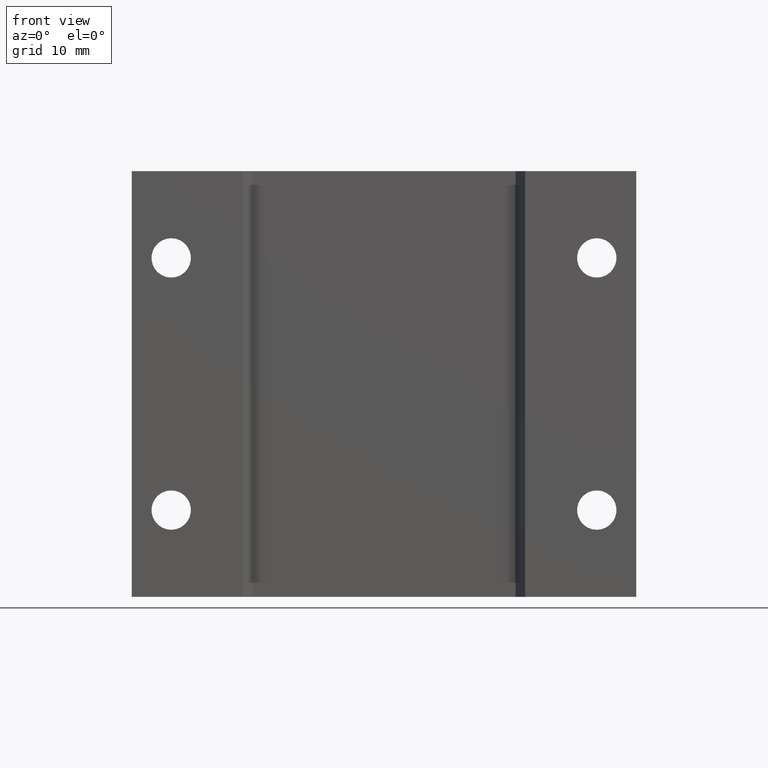
[diagram: clean part render]
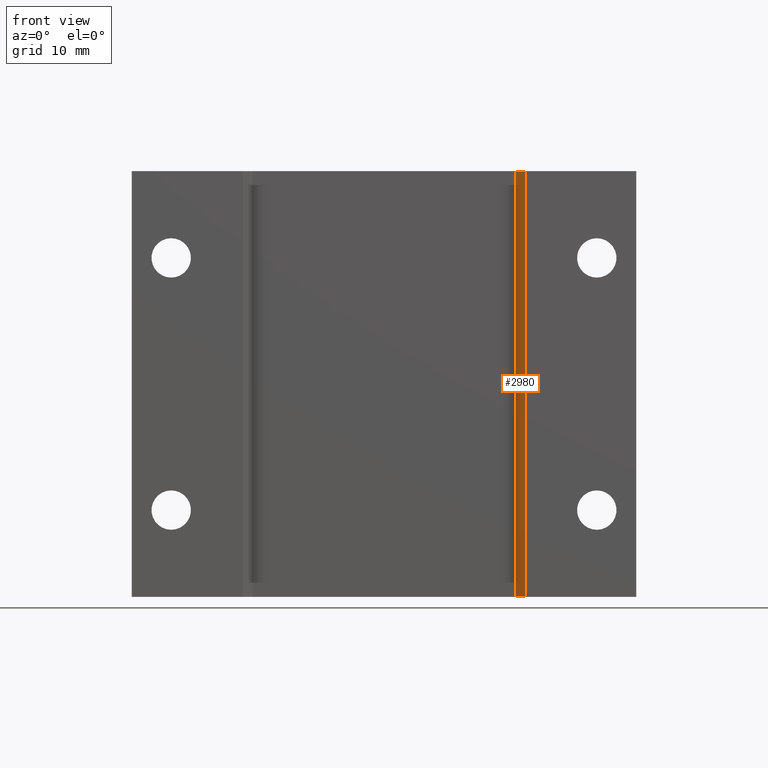
[diagram: same view with one face highlighted and labeled with its STEP entity id]
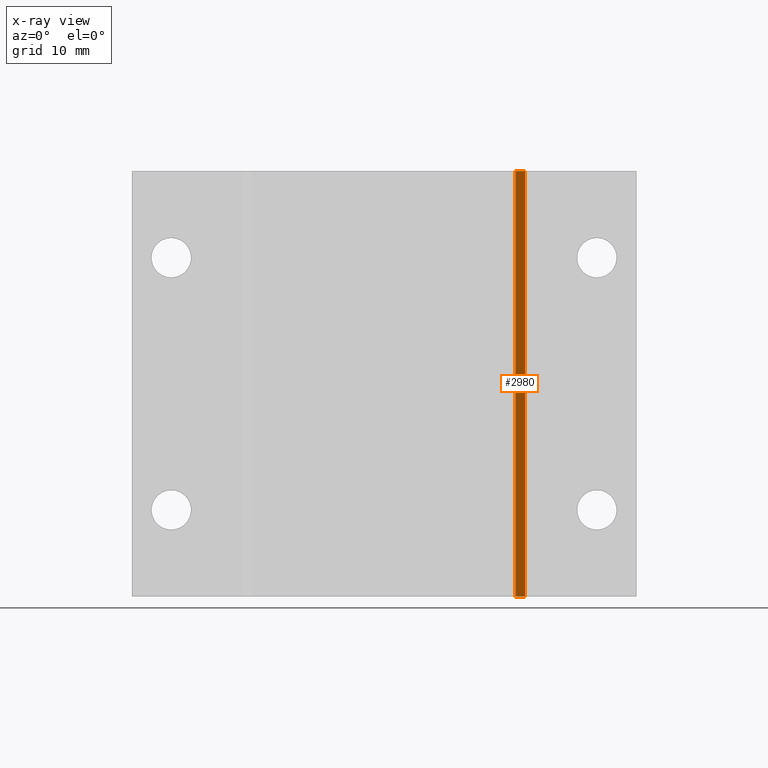
[diagram: x-ray of the same camera — body ghosted, the highlighted face saturated]
A machine part, front view. The second image highlights one B-rep face of the part: STEP entity #2980.
The next image is the same camera in x-ray: the body ghosted, the highlighted face saturated — about 0% of this face is hidden behind the body in this view.
In plain terms, the highlighted planar face has unit normal (0.866, 0.5, 0).
Its self-contained STEP definition (entity closure, byte-faithful):
#176 = DIRECTION ( 'NONE',  ( -0.5000000000000036637, 0.8660254037844364872, 0.0000000000000000000 ) ) ;
#272 = LINE ( 'NONE', #2430, #3260 ) ;
#298 = VERTEX_POINT ( 'NONE', #2112 ) ;
#352 = EDGE_LOOP ( 'NONE', ( #1609, #3660, #3133, #1239 ) ) ;
#365 = EDGE_CURVE ( 'NONE', #298, #3297, #1278, .T. ) ;
#928 = DIRECTION ( 'NONE',  ( -0.5000000000000036637, 0.8660254037844364872, -0.0000000000000000000 ) ) ;
#1032 = AXIS2_PLACEMENT_3D ( 'NONE', #1932, #3284, #176 ) ;
#1079 = EDGE_CURVE ( 'NONE', #1425, #1791, #2619, .T. ) ;
#1212 = PLANE ( 'NONE',  #1032 ) ;
#1239 = ORIENTED_EDGE ( 'NONE', *, *, #1079, .F. ) ;
#1278 = LINE ( 'NONE', #3329, #2720 ) ;
#1425 = VERTEX_POINT ( 'NONE', #2680 ) ;
#1609 = ORIENTED_EDGE ( 'NONE', *, *, #3923, .F. ) ;
#1759 = CARTESIAN_POINT ( 'NONE',  ( 0.5219252271188813408, -0.6219999999999999973, -0.8440019685039371611 ) ) ;
#1791 = VERTEX_POINT ( 'NONE', #2394 ) ;
#1932 = CARTESIAN_POINT ( 'NONE',  ( 0.5219252271188813408, -0.6219999999999999973, -0.8440019685039371611 ) ) ;
#2112 = CARTESIAN_POINT ( 'NONE',  ( 0.5594529946162074552, -0.6870000000000000551, -0.8440000000000000835 ) ) ;
#2389 = EDGE_CURVE ( 'NONE', #3297, #1791, #3486, .T. ) ;
#2394 = CARTESIAN_POINT ( 'NONE',  ( 0.5219252271188813408, -0.6219999999999999973, 0.8439999999999997504 ) ) ;
#2430 = CARTESIAN_POINT ( 'NONE',  ( 0.1221100197621973749, 0.07050025278045586596, -0.8440000000000000835 ) ) ;
#2619 = LINE ( 'NONE', #1759, #2817 ) ;
#2648 = VECTOR ( 'NONE', #3754, 39.37007874015748854 ) ;
#2680 = CARTESIAN_POINT ( 'NONE',  ( 0.5219252271188813408, -0.6219999999999999973, -0.8440000000000000835 ) ) ;
#2720 = VECTOR ( 'NONE', #3669, 39.37007874015748143 ) ;
#2817 = VECTOR ( 'NONE', #3941, 39.37007874015748143 ) ;
#2980 = ADVANCED_FACE ( 'NONE', ( #3113 ), #1212, .F. ) ;
#3113 = FACE_OUTER_BOUND ( 'NONE', #352, .T. ) ;
#3133 = ORIENTED_EDGE ( 'NONE', *, *, #2389, .T. ) ;
#3145 = CARTESIAN_POINT ( 'NONE',  ( 0.5219252271188813408, -0.6219999999999999973, 0.8439999999999997504 ) ) ;
#3150 = CARTESIAN_POINT ( 'NONE',  ( 0.5594529946162074552, -0.6870000000000000551, 0.8439999999999997504 ) ) ;
#3260 = VECTOR ( 'NONE', #928, 39.37007874015748143 ) ;
#3284 = DIRECTION ( 'NONE',  ( 0.8660254037844365982, 0.5000000000000037748, 0.0000000000000000000 ) ) ;
#3297 = VERTEX_POINT ( 'NONE', #3150 ) ;
#3329 = CARTESIAN_POINT ( 'NONE',  ( 0.5594529946162074552, -0.6870000000000000551, -0.8440019685039371611 ) ) ;
#3486 = LINE ( 'NONE', #3145, #2648 ) ;
#3660 = ORIENTED_EDGE ( 'NONE', *, *, #365, .T. ) ;
#3669 = DIRECTION ( 'NONE',  ( 0.0000000000000000000, 0.0000000000000000000, 1.000000000000000000 ) ) ;
#3754 = DIRECTION ( 'NONE',  ( -0.5000000000000036637, 0.8660254037844364872, -0.0000000000000000000 ) ) ;
#3923 = EDGE_CURVE ( 'NONE', #298, #1425, #272, .T. ) ;
#3941 = DIRECTION ( 'NONE',  ( -0.0000000000000000000, -0.0000000000000000000, 1.000000000000000000 ) ) ;